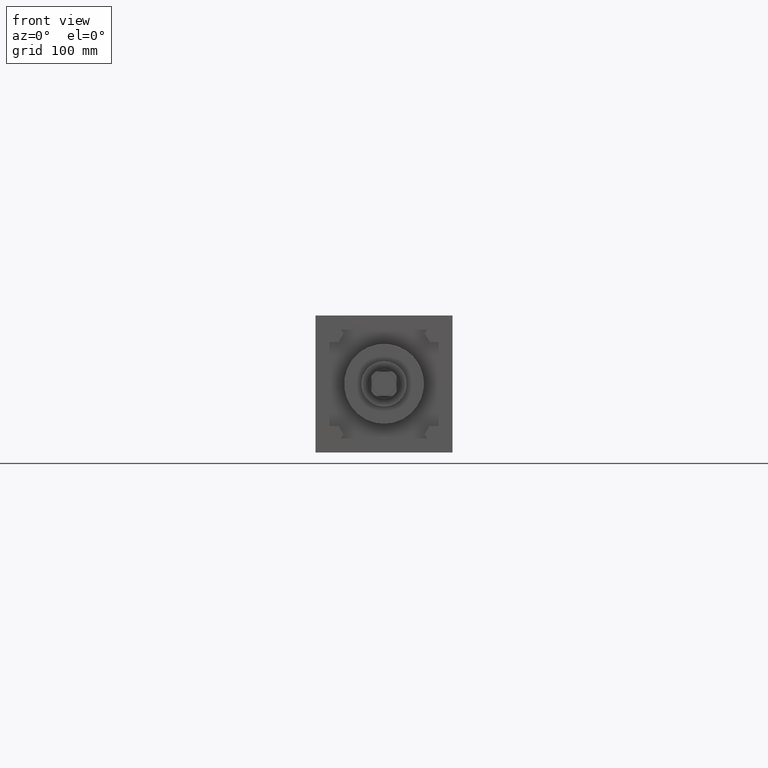
[diagram: clean part render]
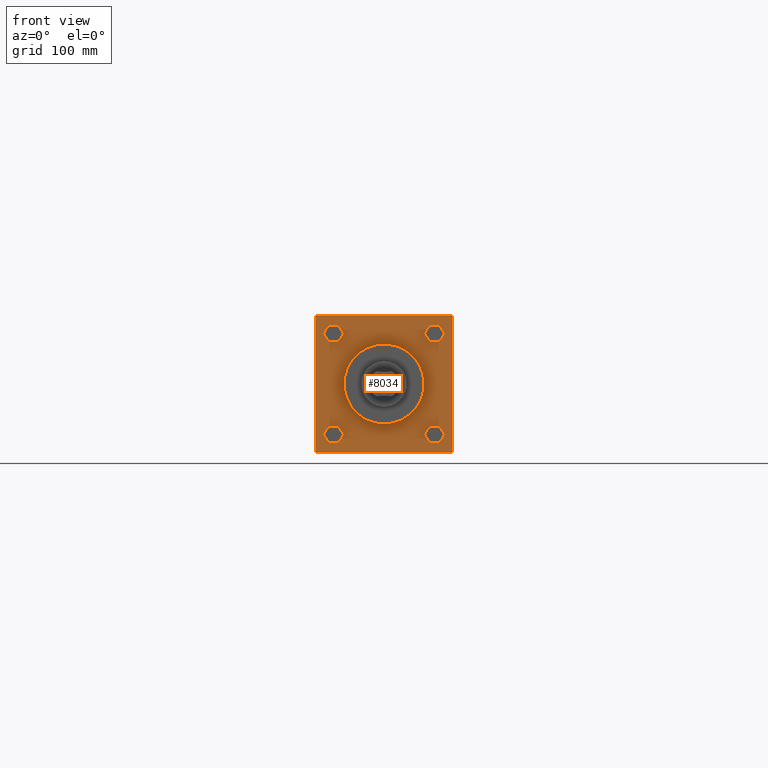
[diagram: same view with one face highlighted and labeled with its STEP entity id]
A machine part, front view. The second image highlights one B-rep face of the part: STEP entity #8034.
In plain terms, the highlighted planar face has unit normal (0, -1, 0).
Its self-contained STEP definition (entity closure, byte-faithful):
#451=EDGE_CURVE('',#457,#457,#452,.T.);
#452=CIRCLE('',#453,3.333750000E+001);
#453=AXIS2_PLACEMENT_3D('',#454,#455,#456);
#454=CARTESIAN_POINT('',(0.000000000E+000,3.492500000E+001,0.000000000E+000));
#455=DIRECTION('',(0.0E+000,1.0E+000,0.0E+000));
#456=DIRECTION('',(1.0E+000,0.0E+000,0.0E+000));
#457=VERTEX_POINT('',#458);
#458=CARTESIAN_POINT('',(3.333750000E+001,3.492500000E+001,0.000000000E+000));
#1056=VERTEX_POINT('',#1057);
#1057=CARTESIAN_POINT('',(4.628845125E+001,3.492500000E+001,3.502025547E+001));
#1058=EDGE_CURVE('',#1056,#1063,#1059,.T.);
#1059=LINE('',#1060,#1061);
#1060=CARTESIAN_POINT('',(4.628845125E+001,3.492500000E+001,3.502025547E+001));
#1061=VECTOR('',#1062,1.0E+000);
#1062=DIRECTION('',(5.0E-001,0.0E+000,8.66025403784439E-001));
#1063=VERTEX_POINT('',#1064);
#1064=CARTESIAN_POINT('',(5.041288986E+001,3.492500000E+001,4.216400000E+001));
#1086=VERTEX_POINT('',#1087);
#1087=CARTESIAN_POINT('',(3.803954875E+001,3.492500000E+001,3.502025547E+001));
#1088=EDGE_CURVE('',#1086,#1056,#1089,.T.);
#1089=LINE('',#1090,#1091);
#1090=CARTESIAN_POINT('',(3.803954875E+001,3.492500000E+001,3.502025547E+001));
#1091=VECTOR('',#1092,1.0E+000);
#1092=DIRECTION('',(1.0E+000,0.0E+000,0.0E+000));
#1109=VERTEX_POINT('',#1110);
#1110=CARTESIAN_POINT('',(3.391511014E+001,3.492500000E+001,4.216400000E+001));
#1111=EDGE_CURVE('',#1109,#1086,#1112,.T.);
#1112=LINE('',#1113,#1114);
#1113=CARTESIAN_POINT('',(3.391511014E+001,3.492500000E+001,4.216400000E+001));
#1114=VECTOR('',#1115,1.0E+000);
#1115=DIRECTION('',(5.0E-001,0.0E+000,-8.66025403784439E-001));
#1132=VERTEX_POINT('',#1133);
#1133=CARTESIAN_POINT('',(3.803954875E+001,3.492500000E+001,4.930774453E+001));
#1134=EDGE_CURVE('',#1132,#1109,#1135,.T.);
#1135=LINE('',#1136,#1137);
#1136=CARTESIAN_POINT('',(3.803954875E+001,3.492500000E+001,4.930774453E+001));
#1137=VECTOR('',#1138,1.0E+000);
#1138=DIRECTION('',(-5.0E-001,0.0E+000,-8.66025403784439E-001));
#1155=VERTEX_POINT('',#1156);
#1156=CARTESIAN_POINT('',(4.628845125E+001,3.492500000E+001,4.930774453E+001));
#1157=EDGE_CURVE('',#1155,#1132,#1158,.T.);
#1158=LINE('',#1159,#1160);
#1159=CARTESIAN_POINT('',(4.628845125E+001,3.492500000E+001,4.930774453E+001));
#1160=VECTOR('',#1161,1.0E+000);
#1161=DIRECTION('',(-1.0E+000,0.0E+000,0.0E+000));
#1173=EDGE_CURVE('',#1063,#1155,#1174,.T.);
#1174=LINE('',#1175,#1176);
#1175=CARTESIAN_POINT('',(5.041288986E+001,3.492500000E+001,4.216400000E+001));
#1176=VECTOR('',#1177,1.0E+000);
#1177=DIRECTION('',(-5.0E-001,0.0E+000,8.66025403784439E-001));
#1249=VERTEX_POINT('',#1250);
#1250=CARTESIAN_POINT('',(-3.803954875E+001,3.492500000E+001,3.502025547E+001));
#1251=EDGE_CURVE('',#1249,#1256,#1252,.T.);
#1252=LINE('',#1253,#1254);
#1253=CARTESIAN_POINT('',(-3.803954875E+001,3.492500000E+001,3.502025547E+001));
#1254=VECTOR('',#1255,1.0E+000);
#1255=DIRECTION('',(5.0E-001,0.0E+000,8.66025403784439E-001));
#1256=VERTEX_POINT('',#1257);
#1257=CARTESIAN_POINT('',(-3.391511014E+001,3.492500000E+001,4.216400000E+001));
#1279=VERTEX_POINT('',#1280);
#1280=CARTESIAN_POINT('',(-4.628845125E+001,3.492500000E+001,3.502025547E+001));
#1281=EDGE_CURVE('',#1279,#1249,#1282,.T.);
#1282=LINE('',#1283,#1284);
#1283=CARTESIAN_POINT('',(-4.628845125E+001,3.492500000E+001,3.502025547E+001));
#1284=VECTOR('',#1285,1.0E+000);
#1285=DIRECTION('',(1.0E+000,0.0E+000,0.0E+000));
#1302=VERTEX_POINT('',#1303);
#1303=CARTESIAN_POINT('',(-5.041288986E+001,3.492500000E+001,4.216400000E+001));
#1304=EDGE_CURVE('',#1302,#1279,#1305,.T.);
#1305=LINE('',#1306,#1307);
#1306=CARTESIAN_POINT('',(-5.041288986E+001,3.492500000E+001,4.216400000E+001));
#1307=VECTOR('',#1308,1.0E+000);
#1308=DIRECTION('',(5.0E-001,0.0E+000,-8.66025403784439E-001));
#1325=VERTEX_POINT('',#1326);
#1326=CARTESIAN_POINT('',(-4.628845125E+001,3.492500000E+001,4.930774453E+001));
#1327=EDGE_CURVE('',#1325,#1302,#1328,.T.);
#1328=LINE('',#1329,#1330);
#1329=CARTESIAN_POINT('',(-4.628845125E+001,3.492500000E+001,4.930774453E+001));
#1330=VECTOR('',#1331,1.0E+000);
#1331=DIRECTION('',(-5.0E-001,0.0E+000,-8.66025403784439E-001));
#1348=VERTEX_POINT('',#1349);
#1349=CARTESIAN_POINT('',(-3.803954875E+001,3.492500000E+001,4.930774453E+001));
#1350=EDGE_CURVE('',#1348,#1325,#1351,.T.);
#1351=LINE('',#1352,#1353);
#1352=CARTESIAN_POINT('',(-3.803954875E+001,3.492500000E+001,4.930774453E+001));
#1353=VECTOR('',#1354,1.0E+000);
#1354=DIRECTION('',(-1.0E+000,0.0E+000,0.0E+000));
#1366=EDGE_CURVE('',#1256,#1348,#1367,.T.);
#1367=LINE('',#1368,#1369);
#1368=CARTESIAN_POINT('',(-3.391511014E+001,3.492500000E+001,4.216400000E+001));
#1369=VECTOR('',#1370,1.0E+000);
#1370=DIRECTION('',(-5.0E-001,0.0E+000,8.66025403784439E-001));
#1442=VERTEX_POINT('',#1443);
#1443=CARTESIAN_POINT('',(-3.803954875E+001,3.492500000E+001,-4.930774453E+001));
#1444=EDGE_CURVE('',#1442,#1449,#1445,.T.);
#1445=LINE('',#1446,#1447);
#1446=CARTESIAN_POINT('',(-3.803954875E+001,3.492500000E+001,-4.930774453E+001));
#1447=VECTOR('',#1448,1.0E+000);
#1448=DIRECTION('',(5.0E-001,0.0E+000,8.66025403784439E-001));
#1449=VERTEX_POINT('',#1450);
#1450=CARTESIAN_POINT('',(-3.391511014E+001,3.492500000E+001,-4.216400000E+001));
#1472=VERTEX_POINT('',#1473);
#1473=CARTESIAN_POINT('',(-4.628845125E+001,3.492500000E+001,-4.930774453E+001));
#1474=EDGE_CURVE('',#1472,#1442,#1475,.T.);
#1475=LINE('',#1476,#1477);
#1476=CARTESIAN_POINT('',(-4.628845125E+001,3.492500000E+001,-4.930774453E+001));
#1477=VECTOR('',#1478,1.0E+000);
#1478=DIRECTION('',(1.0E+000,0.0E+000,0.0E+000));
#1495=VERTEX_POINT('',#1496);
#1496=CARTESIAN_POINT('',(-5.041288986E+001,3.492500000E+001,-4.216400000E+001));
#1497=EDGE_CURVE('',#1495,#1472,#1498,.T.);
#1498=LINE('',#1499,#1500);
#1499=CARTESIAN_POINT('',(-5.041288986E+001,3.492500000E+001,-4.216400000E+001));
#1500=VECTOR('',#1501,1.0E+000);
#1501=DIRECTION('',(5.0E-001,0.0E+000,-8.66025403784439E-001));
#1518=VERTEX_POINT('',#1519);
#1519=CARTESIAN_POINT('',(-4.628845125E+001,3.492500000E+001,-3.502025547E+001));
#1520=EDGE_CURVE('',#1518,#1495,#1521,.T.);
#1521=LINE('',#1522,#1523);
#1522=CARTESIAN_POINT('',(-4.628845125E+001,3.492500000E+001,-3.502025547E+001));
#1523=VECTOR('',#1524,1.0E+000);
#1524=DIRECTION('',(-5.0E-001,0.0E+000,-8.66025403784439E-001));
#1541=VERTEX_POINT('',#1542);
#1542=CARTESIAN_POINT('',(-3.803954875E+001,3.492500000E+001,-3.502025547E+001));
#1543=EDGE_CURVE('',#1541,#1518,#1544,.T.);
#1544=LINE('',#1545,#1546);
#1545=CARTESIAN_POINT('',(-3.803954875E+001,3.492500000E+001,-3.502025547E+001));
#1546=VECTOR('',#1547,1.0E+000);
#1547=DIRECTION('',(-1.0E+000,0.0E+000,0.0E+000));
#1559=EDGE_CURVE('',#1449,#1541,#1560,.T.);
#1560=LINE('',#1561,#1562);
#1561=CARTESIAN_POINT('',(-3.391511014E+001,3.492500000E+001,-4.216400000E+001));
#1562=VECTOR('',#1563,1.0E+000);
#1563=DIRECTION('',(-5.0E-001,0.0E+000,8.66025403784439E-001));
#1635=VERTEX_POINT('',#1636);
#1636=CARTESIAN_POINT('',(3.803954875E+001,3.492500000E+001,-3.502025547E+001));
#1637=EDGE_CURVE('',#1635,#1642,#1638,.T.);
#1638=LINE('',#1639,#1640);
#1639=CARTESIAN_POINT('',(3.803954875E+001,3.492500000E+001,-3.502025547E+001));
#1640=VECTOR('',#1641,1.0E+000);
#1641=DIRECTION('',(-5.0E-001,0.0E+000,-8.66025403784439E-001));
#1642=VERTEX_POINT('',#1643);
#1643=CARTESIAN_POINT('',(3.391511014E+001,3.492500000E+001,-4.216400000E+001));
#1665=VERTEX_POINT('',#1666);
#1666=CARTESIAN_POINT('',(4.628845125E+001,3.492500000E+001,-3.502025547E+001));
#1667=EDGE_CURVE('',#1665,#1635,#1668,.T.);
#1668=LINE('',#1669,#1670);
#1669=CARTESIAN_POINT('',(4.628845125E+001,3.492500000E+001,-3.502025547E+001));
#1670=VECTOR('',#1671,1.0E+000);
#1671=DIRECTION('',(-1.0E+000,0.0E+000,0.0E+000));
#1688=VERTEX_POINT('',#1689);
#1689=CARTESIAN_POINT('',(5.041288986E+001,3.492500000E+001,-4.216400000E+001));
#1690=EDGE_CURVE('',#1688,#1665,#1691,.T.);
#1691=LINE('',#1692,#1693);
#1692=CARTESIAN_POINT('',(5.041288986E+001,3.492500000E+001,-4.216400000E+001));
#1693=VECTOR('',#1694,1.0E+000);
#1694=DIRECTION('',(-5.0E-001,0.0E+000,8.66025403784439E-001));
#1711=VERTEX_POINT('',#1712);
#1712=CARTESIAN_POINT('',(4.628845125E+001,3.492500000E+001,-4.930774453E+001));
#1713=EDGE_CURVE('',#1711,#1688,#1714,.T.);
#1714=LINE('',#1715,#1716);
#1715=CARTESIAN_POINT('',(4.628845125E+001,3.492500000E+001,-4.930774453E+001));
#1716=VECTOR('',#1717,1.0E+000);
#1717=DIRECTION('',(5.0E-001,0.0E+000,8.66025403784439E-001));
#1734=VERTEX_POINT('',#1735);
#1735=CARTESIAN_POINT('',(3.803954875E+001,3.492500000E+001,-4.930774453E+001));
#1736=EDGE_CURVE('',#1734,#1711,#1737,.T.);
#1737=LINE('',#1738,#1739);
#1738=CARTESIAN_POINT('',(3.803954875E+001,3.492500000E+001,-4.930774453E+001));
#1739=VECTOR('',#1740,1.0E+000);
#1740=DIRECTION('',(1.0E+000,0.0E+000,0.0E+000));
#1752=EDGE_CURVE('',#1642,#1734,#1753,.T.);
#1753=LINE('',#1754,#1755);
#1754=CARTESIAN_POINT('',(3.391511014E+001,3.492500000E+001,-4.216400000E+001));
#1755=VECTOR('',#1756,1.0E+000);
#1756=DIRECTION('',(5.0E-001,0.0E+000,-8.66025403784439E-001));
#1946=EDGE_CURVE('',#1951,#1952,#1947,.T.);
#1947=LINE('',#1948,#1949);
#1948=CARTESIAN_POINT('',(-5.715000000E+001,3.492500000E+001,5.715000000E+001));
#1949=VECTOR('',#1950,1.0E+000);
#1950=DIRECTION('',(0.0E+000,0.0E+000,-1.0E+000));
#1951=VERTEX_POINT('',#1953);
#1952=VERTEX_POINT('',#1954);
#1953=CARTESIAN_POINT('',(-5.715000000E+001,3.492500000E+001,5.715000000E+001));
#1954=CARTESIAN_POINT('',(-5.715000000E+001,3.492500000E+001,-5.715000000E+001));
#1988=EDGE_CURVE('',#1993,#1951,#1989,.T.);
#1989=LINE('',#1990,#1991);
#1990=CARTESIAN_POINT('',(5.715000000E+001,3.492500000E+001,5.715000000E+001));
#1991=VECTOR('',#1992,1.0E+000);
#1992=DIRECTION('',(-1.0E+000,0.0E+000,0.0E+000));
#1993=VERTEX_POINT('',#1994);
#1994=CARTESIAN_POINT('',(5.715000000E+001,3.492500000E+001,5.715000000E+001));
#2021=EDGE_CURVE('',#2026,#1993,#2022,.T.);
#2022=LINE('',#2023,#2024);
#2023=CARTESIAN_POINT('',(5.715000000E+001,3.492500000E+001,-5.715000000E+001));
#2024=VECTOR('',#2025,1.0E+000);
#2025=DIRECTION('',(0.0E+000,0.0E+000,1.0E+000));
#2026=VERTEX_POINT('',#2027);
#2027=CARTESIAN_POINT('',(5.715000000E+001,3.492500000E+001,-5.715000000E+001));
#2057=EDGE_CURVE('',#1952,#2026,#2058,.T.);
#2058=LINE('',#2059,#2060);
#2059=CARTESIAN_POINT('',(-5.715000000E+001,3.492500000E+001,-5.715000000E+001));
#2060=VECTOR('',#2061,1.0E+000);
#2061=DIRECTION('',(1.0E+000,0.0E+000,0.0E+000));
#2098=FACE_OUTER_BOUND('',#2104,.T.);
#2099=FACE_BOUND('',#2105,.T.);
#2100=FACE_BOUND('',#2106,.T.);
#2101=FACE_BOUND('',#2107,.T.);
#2102=FACE_BOUND('',#2108,.T.);
#2103=FACE_BOUND('',#2109,.T.);
#2104=EDGE_LOOP('',(#2110,#2111,#2112,#2113));
#2105=EDGE_LOOP('',(#2114,#2115,#2116,#2117,#2118,#2119));
#2106=EDGE_LOOP('',(#2120,#2121,#2122,#2123,#2124,#2125));
#2107=EDGE_LOOP('',(#2126,#2127,#2128,#2129,#2130,#2131));
#2108=EDGE_LOOP('',(#2132,#2133,#2134,#2135,#2136,#2137));
#2109=EDGE_LOOP('',(#2138));
#2110=ORIENTED_EDGE('',*,*,#2057,.T.);
#2111=ORIENTED_EDGE('',*,*,#2021,.T.);
#2112=ORIENTED_EDGE('',*,*,#1988,.T.);
#2113=ORIENTED_EDGE('',*,*,#1946,.T.);
#2114=ORIENTED_EDGE('',*,*,#1752,.F.);
#2115=ORIENTED_EDGE('',*,*,#1637,.F.);
#2116=ORIENTED_EDGE('',*,*,#1667,.F.);
#2117=ORIENTED_EDGE('',*,*,#1690,.F.);
#2118=ORIENTED_EDGE('',*,*,#1713,.F.);
#2119=ORIENTED_EDGE('',*,*,#1736,.F.);
#2120=ORIENTED_EDGE('',*,*,#1559,.F.);
#2121=ORIENTED_EDGE('',*,*,#1444,.F.);
#2122=ORIENTED_EDGE('',*,*,#1474,.F.);
#2123=ORIENTED_EDGE('',*,*,#1497,.F.);
#2124=ORIENTED_EDGE('',*,*,#1520,.F.);
#2125=ORIENTED_EDGE('',*,*,#1543,.F.);
#2126=ORIENTED_EDGE('',*,*,#1366,.F.);
#2127=ORIENTED_EDGE('',*,*,#1251,.F.);
#2128=ORIENTED_EDGE('',*,*,#1281,.F.);
#2129=ORIENTED_EDGE('',*,*,#1304,.F.);
#2130=ORIENTED_EDGE('',*,*,#1327,.F.);
#2131=ORIENTED_EDGE('',*,*,#1350,.F.);
#2132=ORIENTED_EDGE('',*,*,#1173,.F.);
#2133=ORIENTED_EDGE('',*,*,#1058,.F.);
#2134=ORIENTED_EDGE('',*,*,#1088,.F.);
#2135=ORIENTED_EDGE('',*,*,#1111,.F.);
#2136=ORIENTED_EDGE('',*,*,#1134,.F.);
#2137=ORIENTED_EDGE('',*,*,#1157,.F.);
#2138=ORIENTED_EDGE('',*,*,#451,.T.);
#2147=PLANE('',#2148);
#2148=AXIS2_PLACEMENT_3D('',#2149,#2150,#2151);
#2149=CARTESIAN_POINT('',(5.715000000E+001,3.492500000E+001,-5.715000000E+001));
#2150=DIRECTION('',(0.0E+000,-1.0E+000,0.0E+000));
#2151=DIRECTION('',(0.0E+000,0.0E+000,-1.0E+000));
#8034=ADVANCED_FACE('',(#2098,#2099,#2100,#2101,#2102,#2103),#2147,.T.);